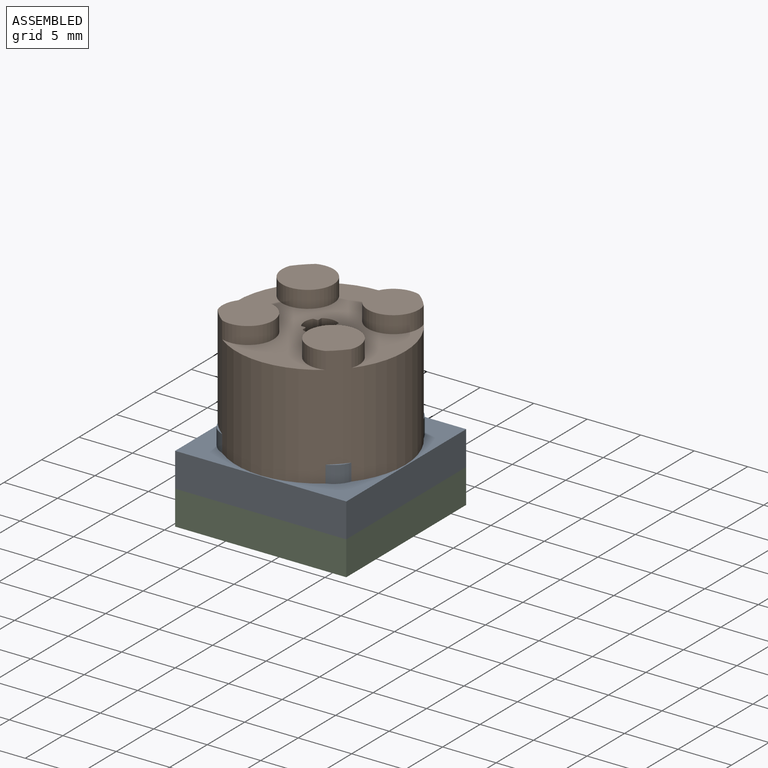
[diagram: assembled view]
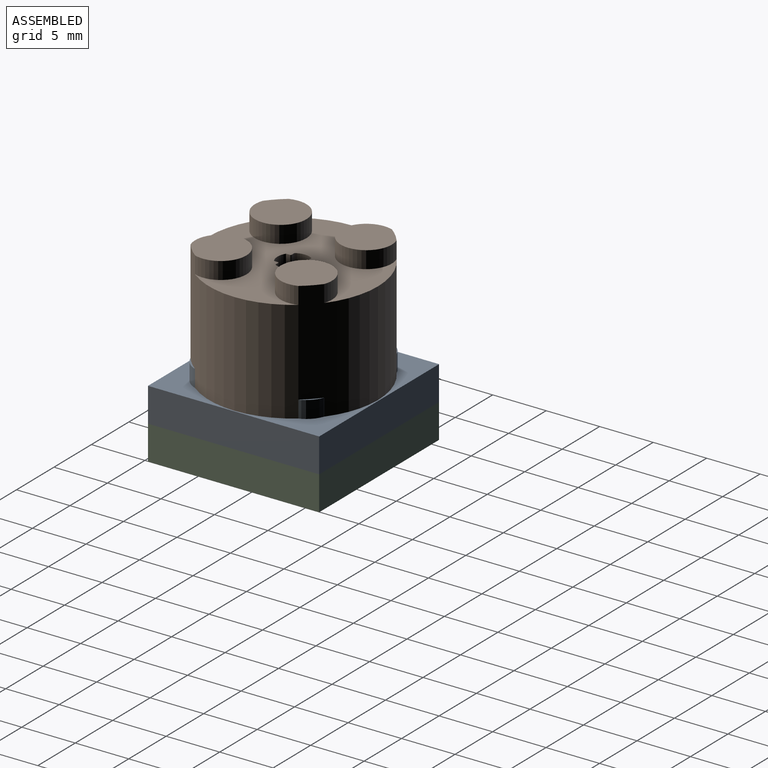
[diagram: assembled view, second angle]
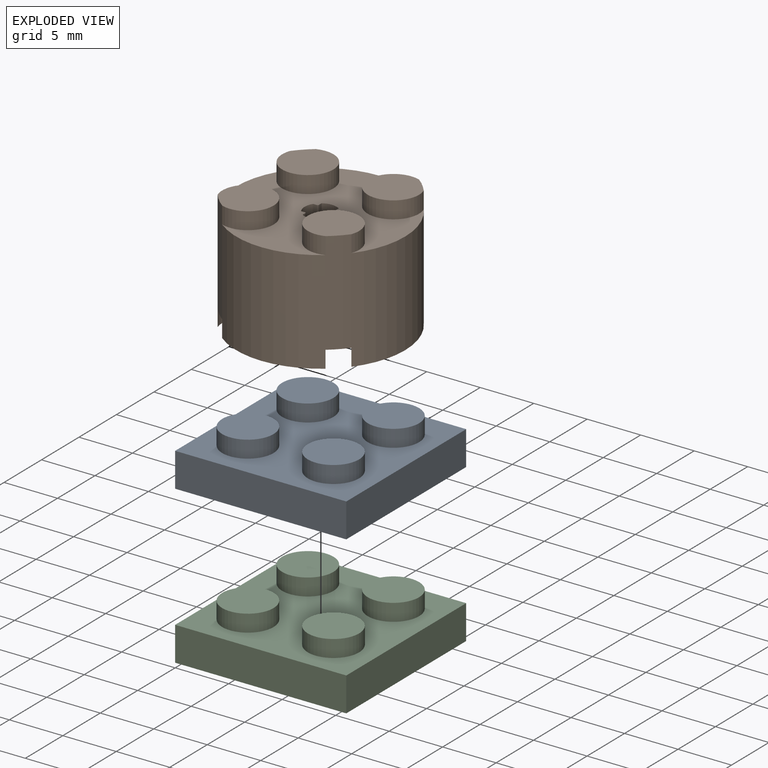
[diagram: exploded view]
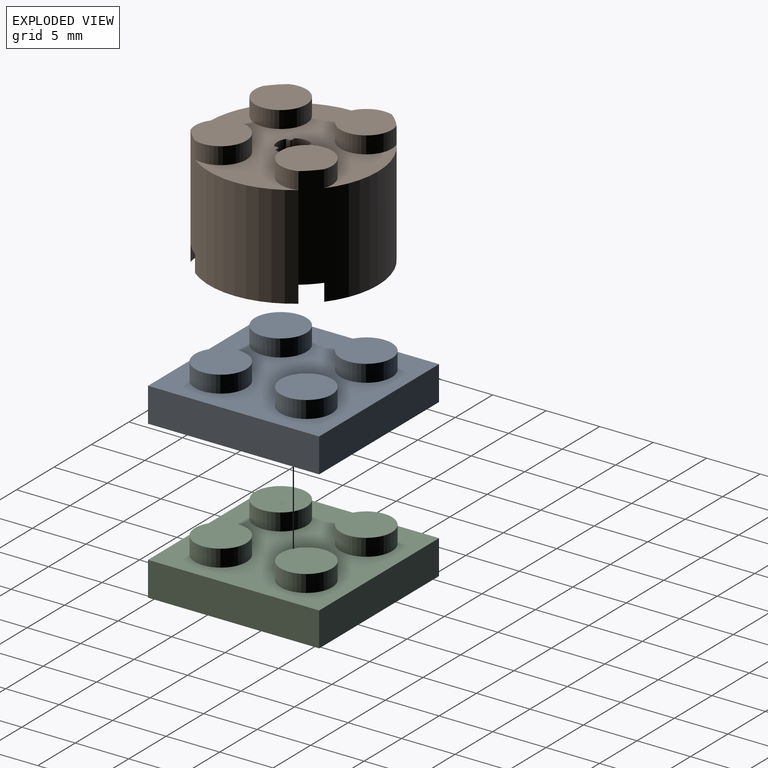
[diagram: exploded view, second angle]
ASSEMBLY  parts=3 mates=6
PART A: 31 faces, bbox 16x16x4.8 mm
  f0: plane 16x16mm, normal (0,0,-1), area 92.2mm2, adj f1,f2,f3,f4,f14,f15,f16,f17
  f1: plane 16x3.2mm, normal (-1,0,0), area 51.2mm2, adj f0,f2,f4,f5
  f2: plane 16x3.2mm, normal (0,-1,0), area 51.2mm2, adj f0,f1,f3,f5
  f3: plane 16x3.2mm, normal (1,0,0), area 51.2mm2, adj f0,f2,f4,f5
  f4: plane 16x3.2mm, normal (0,1,0), area 51.2mm2, adj f0,f1,f3,f5
  f5: plane 16x16mm, normal (0,0,1), area 183.6mm2, adj f1,f2,f3,f4,f6,f8,f10,f12
  f6: cylinder r=2.4mm len=4.8mm, axis (0,0,-1), area 24.1mm2, adj f5,f7
  f7: plane 4.8x4.8mm, normal (0,0,1), area 18.1mm2, adj f6
  f8: cylinder r=2.4mm len=4.8mm, axis (0,0,-1), area 24.1mm2, adj f5,f9
  f9: plane 4.8x4.8mm, normal (0,0,1), area 18.1mm2, adj f8
  f10: cylinder r=2.4mm len=4.8mm, axis (0,0,-1), area 24.1mm2, adj f5,f11
  f11: plane 4.8x4.8mm, normal (0,0,1), area 18.1mm2, adj f10
  f12: cylinder r=2.4mm len=4.8mm, axis (0,0,-1), area 24.1mm2, adj f5,f13
  f13: plane 4.8x4.8mm, normal (0,0,1), area 18.1mm2, adj f12
  f14: plane 12.8x1.6mm, normal (1,0,0), area 20.5mm2, adj f0,f15,f17,f18
  f15: plane 12.8x1.6mm, normal (0,1,0), area 20.5mm2, adj f0,f14,f16,f18
  f16: plane 12.8x1.6mm, normal (-1,0,0), area 20.5mm2, adj f0,f15,f17,f18
  f17: plane 12.8x1.6mm, normal (0,-1,0), area 20.5mm2, adj f0,f14,f16,f18
  f18: plane 12.8x12.8mm, normal (0,0,-1), area 122.5mm2, adj f14,f15,f16,f17,f19,f21,f23,f25
  f19: cylinder r=0.8mm len=1.6mm, axis (0,0,-1), area 8mm2, adj f18,f20
  f20: plane 1.6x1.6mm, normal (0,0,-1), area 2mm2, adj f19
  f21: cylinder r=0.8mm len=1.6mm, axis (0,0,-1), area 8mm2, adj f18,f22
  f22: plane 1.6x1.6mm, normal (0,0,-1), area 2mm2, adj f21
  f23: cylinder r=0.8mm len=1.6mm, axis (0,0,-1), area 8mm2, adj f18,f24
  f24: plane 1.6x1.6mm, normal (0,0,-1), area 2mm2, adj f23
  f25: cylinder r=0.8mm len=1.6mm, axis (0,0,-1), area 8mm2, adj f18,f26
  f26: plane 1.6x1.6mm, normal (0,0,-1), area 2mm2, adj f25
  f27: plane 6.51x6.51mm, normal (0,0,-1), area 15.2mm2, adj f28,f29
  f28: cylinder r=3.26mm len=6.51mm, axis (0,0,1), area 32.7mm2, adj f18,f27
  f29: cylinder r=2.4mm len=4.8mm, axis (0,0,1), area 24.1mm2, adj f27,f30
  f30: plane 4.8x4.8mm, normal (0,0,-1), area 18.1mm2, adj f29
PART B: 55 faces, bbox 15.8x15.8x11.2 mm
  f0: plane 9.66x2.01mm, normal (0,0,-1), area 10.8mm2, adj f19,f23,f37,f54
  f1: plane 9.66x2.01mm, normal (0,0,-1), area 10.8mm2, adj f14,f22,f37,f54
  f2: plane 9.66x2.01mm, normal (0,0,-1), area 10.8mm2, adj f16,f20,f37,f54
  f3: plane 9.66x2.01mm, normal (0,0,-1), area 10.8mm2, adj f13,f17,f37,f54
  f4: plane 15.8x15.8mm, normal (0,0,1), area 118mm2, adj f9,f10,f11,f12,f40,f42,f43,f44
  f5: plane 4.8x4.8mm, normal (0,0,1), area 17.9mm2, adj f11,f54
  f6: plane 4.8x4.8mm, normal (0,0,1), area 17.9mm2, adj f9,f54
  f7: plane 4.8x4.8mm, normal (0,0,1), area 17.9mm2, adj f10,f54
  f8: plane 4.8x4.8mm, normal (0,0,1), area 17.9mm2, adj f12,f54
  f9: cylinder r=2.4mm len=4.8mm, axis (0,0,-1), area 20.8mm2, adj f4,f6,f54
  f10: cylinder r=2.4mm len=4.8mm, axis (0,0,-1), area 20.8mm2, adj f4,f7,f54
  f11: cylinder r=2.4mm len=4.8mm, axis (0,0,-1), area 20.8mm2, adj f4,f5,f54
  f12: cylinder r=2.4mm len=4.8mm, axis (0,0,-1), area 20.8mm2, adj f4,f8,f54
  f13: cylinder r=2.4mm len=2.31mm, axis (0,0,-1), area 3.9mm2, adj f3,f15,f37,f54
  f14: cylinder r=2.4mm len=2.31mm, axis (0,0,-1), area 3.9mm2, adj f1,f15,f37,f54
  f15: plane 3.89x3.89mm, normal (0,0,-1), area 6mm2, adj f13,f14,f37,f54
  f16: cylinder r=2.4mm len=2.31mm, axis (0,0,-1), area 3.9mm2, adj f2,f18,f37,f54
  f17: cylinder r=2.4mm len=2.31mm, axis (0,0,-1), area 3.9mm2, adj f3,f18,f37,f54
  f18: plane 3.89x3.89mm, normal (0,0,-1), area 6mm2, adj f16,f17,f37,f54
  f19: cylinder r=2.4mm len=2.31mm, axis (0,0,-1), area 3.9mm2, adj f0,f21,f37,f54
  f20: cylinder r=2.4mm len=2.31mm, axis (0,0,-1), area 3.9mm2, adj f2,f21,f37,f54
  f21: plane 3.89x3.89mm, normal (0,0,-1), area 6mm2, adj f19,f20,f37,f54
  f22: cylinder r=2.4mm len=2.31mm, axis (0,0,-1), area 3.9mm2, adj f1,f24,f37,f54
  f23: cylinder r=2.4mm len=2.31mm, axis (0,0,-1), area 3.9mm2, adj f0,f24,f37,f54
  f24: plane 3.89x3.89mm, normal (0,0,-1), area 6mm2, adj f22,f23,f37,f54
  f25: plane 0.47x0.47mm, normal (0,0,-1), area 0.1mm2, adj f40,f44,f45,f46
  f26: plane 0.47x0.47mm, normal (0,0,-1), area 0.1mm2, adj f40,f47,f48,f49
  f27: plane 0.47x0.47mm, normal (0,0,-1), area 0.1mm2, adj f40,f50,f51,f52
  f28: plane 12.8x12.8mm, normal (0,0,-1), area 107.7mm2, adj f33,f34,f35,f36,f37,f39
  f29: plane 1.6x1.6mm, normal (0,0,-1), area 2mm2, adj f35,f37
  f30: plane 1.6x1.6mm, normal (0,0,-1), area 2mm2, adj f33,f37
  f31: plane 1.6x1.6mm, normal (0,0,-1), area 2mm2, adj f34,f37
  f32: plane 1.6x1.6mm, normal (0,0,-1), area 2mm2, adj f36,f37
  f33: cylinder r=0.8mm len=1.6mm, axis (0,0,-1), area 7mm2, adj f28,f30,f37
  f34: cylinder r=0.8mm len=1.6mm, axis (0,0,-1), area 7mm2, adj f28,f31,f37
  f35: cylinder r=0.8mm len=1.6mm, axis (0,0,-1), area 7mm2, adj f28,f29,f37
  f36: cylinder r=0.8mm len=1.6mm, axis (0,0,-1), area 7mm2, adj f28,f32,f37
  f37: cylinder r=6.4mm len=12.8mm, axis (0,0,-1), area 294.5mm2, adj f0,f1,f2,f3,f13,f14,f15,f16
  f38: plane 4.07x4.07mm, normal (0,0,-1), area 5.9mm2, adj f39,f40
  f39: cylinder r=2.03mm len=8mm, axis (0,0,1), area 102.3mm2, adj f28,f38
  f40: cylinder r=1.5mm len=9.6mm, axis (0,0,1), area 86.2mm2, adj f4,f25,f26,f27,f38,f41,f43,f44
  f41: plane 0.47x0.47mm, normal (0,0,-1), area 0.1mm2, adj f40,f42,f43,f53
  f42: cylinder r=0.1mm len=1.6mm, axis (0,0,1), area 0.3mm2, adj f4,f41,f43,f53
  f43: plane 1.6x0.37mm, normal (-1,0,0), area 0.6mm2, adj f4,f40,f41,f42
  f44: plane 1.6x0.37mm, normal (1,0,0), area 0.6mm2, adj f4,f25,f40,f45
  f45: cylinder r=0.1mm len=1.6mm, axis (0,0,1), area 0.3mm2, adj f4,f25,f44,f46
  f46: plane 1.6x0.37mm, normal (0,-1,0), area 0.6mm2, adj f4,f25,f40,f45
  f47: plane 1.6x0.37mm, normal (0,1,0), area 0.6mm2, adj f4,f26,f40,f48
  f48: cylinder r=0.1mm len=1.6mm, axis (0,0,1), area 0.3mm2, adj f4,f26,f47,f49
  f49: plane 1.6x0.37mm, normal (1,0,0), area 0.6mm2, adj f4,f26,f40,f48
  f50: plane 1.6x0.37mm, normal (-1,0,0), area 0.6mm2, adj f4,f27,f40,f51
  f51: cylinder r=0.1mm len=1.6mm, axis (0,0,1), area 0.3mm2, adj f4,f27,f50,f52
  f52: plane 1.6x0.37mm, normal (0,1,0), area 0.6mm2, adj f4,f27,f40,f51
  f53: plane 1.6x0.37mm, normal (0,-1,0), area 0.6mm2, adj f4,f40,f41,f42
  f54: cylinder r=7.9mm len=15.8mm, axis (0,0,-1), area 476.5mm2, adj f0,f1,f2,f3,f4,f5,f6,f7
PART C: same geometry as A
PLACE A at identity fixed
PLACE B t=(0,0,3.2)mm
PLACE C t=(0,0,-3.2)mm
MATE planar B.f37 <-> A.f28  axis (0,0,-1) through (8,8,3.2)mm
MATE planar C.f4 <-> A.f4  axis (0,1,0) through (8,16,-1.6)mm
MATE cylindrical B.f12 <-> A.f6  axis (0,0,-1) through (12,12,12.8)mm
MATE cylindrical B.f10 <-> A.f10  axis (0,0,-1) through (4,4,13.6)mm
MATE planar A.f0 <-> C.f5  axis (0,0,-1) through (16,0,0)mm
MATE planar C.f3 <-> A.f3  axis (1,0,0) through (16,8,-1.6)mm
